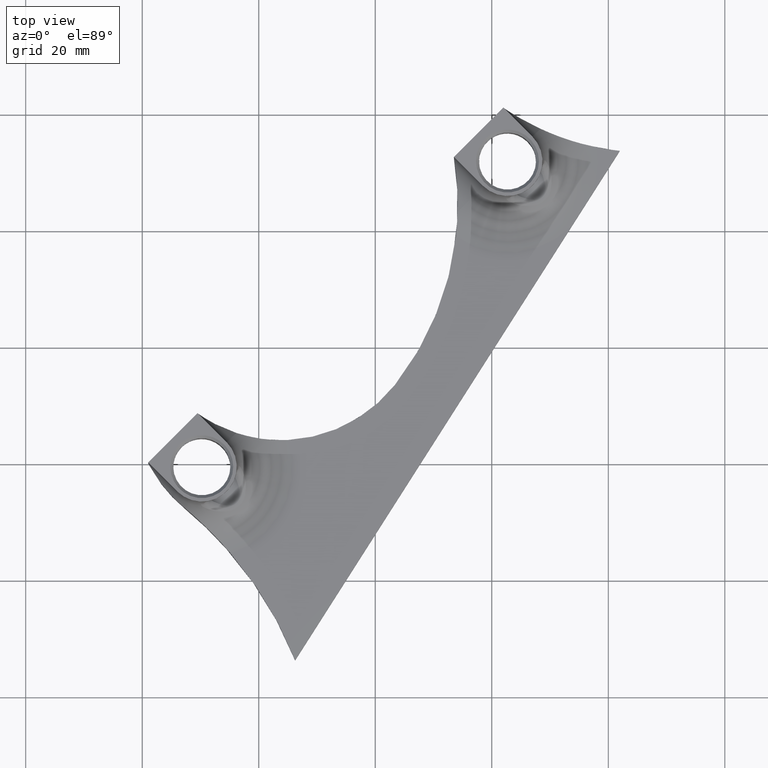
[diagram: clean part render]
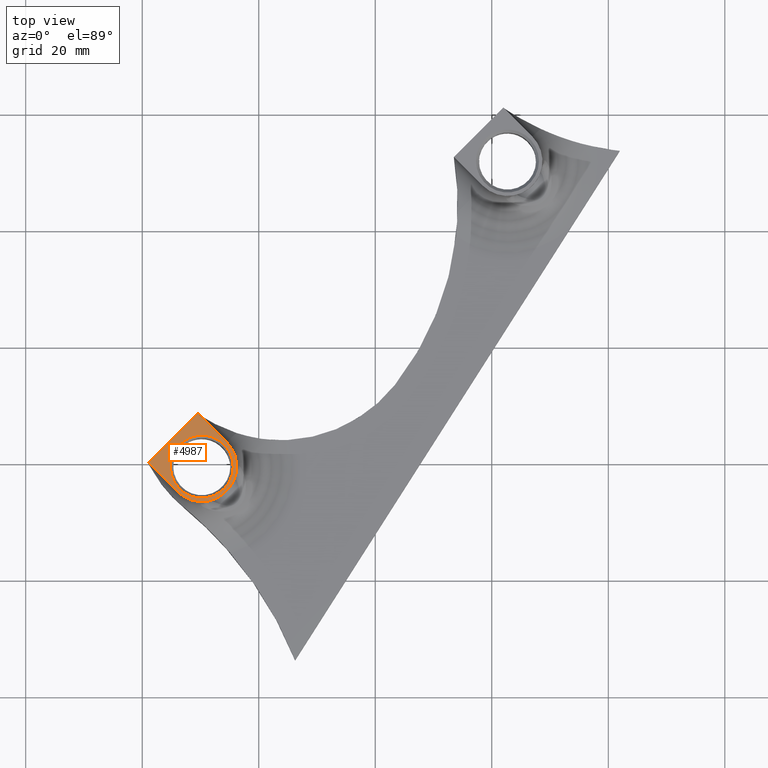
[diagram: same view with one face highlighted and labeled with its STEP entity id]
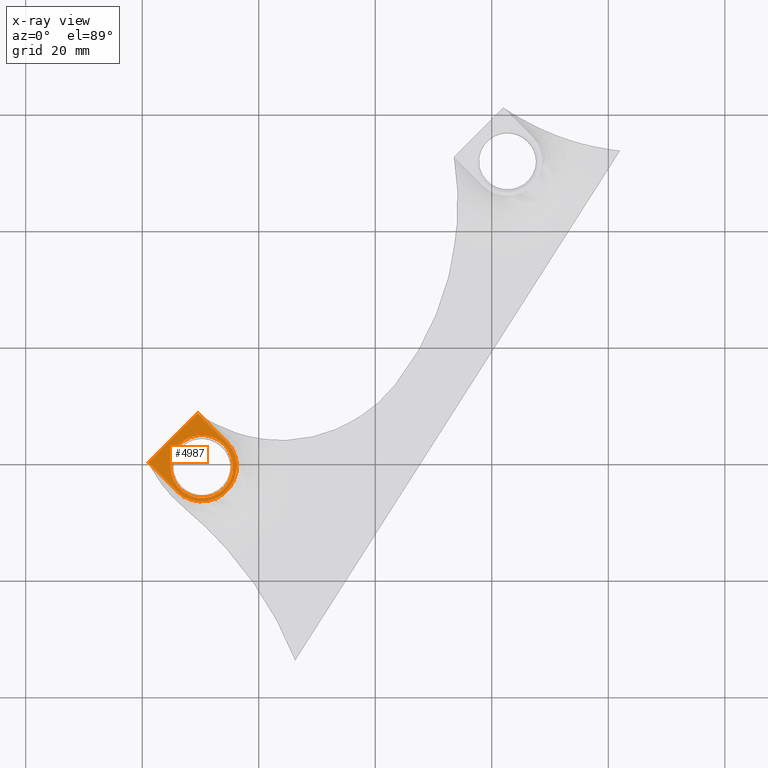
[diagram: x-ray of the same camera — body ghosted, the highlighted face saturated]
A machine part, top view. The second image highlights one B-rep face of the part: STEP entity #4987.
The next image is the same camera in x-ray: the body ghosted, the highlighted face saturated — about 0% of this face is hidden behind the body in this view.
In plain terms, the highlighted planar face has unit normal (0, 0, 1).
Its self-contained STEP definition (entity closure, byte-faithful):
#757 = DIRECTION ( 'NONE',  ( 0.0000000000000000000, 0.0000000000000000000, 1.000000000000000000 ) ) ;
#758 = CARTESIAN_POINT ( 'NONE',  ( 0.0000000000000000000, 0.0000000000000000000, 11.40000000000000000 ) ) ;
#760 = PLANE ( 'NONE',  #2030 ) ;
#762 = DIRECTION ( 'NONE',  ( 1.000000000000000000, 0.0000000000000000000, -0.0000000000000000000 ) ) ;
#826 = CARTESIAN_POINT ( 'NONE',  ( -24.37331683725253100, 39.37998189283575800, 11.40000000000000000 ) ) ;
#2030 = AXIS2_PLACEMENT_3D ( 'NONE', #758, #757, #762 ) ;
#2049 = ORIENTED_EDGE ( 'NONE', *, *, #4540, .T. ) ;
#2061 = ORIENTED_EDGE ( 'NONE', *, *, #4528, .T. ) ;
#2084 = ORIENTED_EDGE ( 'NONE', *, *, #4543, .F. ) ;
#2129 = ORIENTED_EDGE ( 'NONE', *, *, #4542, .F. ) ;
#2131 = ORIENTED_EDGE ( 'NONE', *, *, #4541, .T. ) ;
#2167 = CARTESIAN_POINT ( 'NONE',  ( -34.01595752437175700, 35.13734120571646000, 11.40000000000002200 ) ) ;
#2243 = CARTESIAN_POINT ( 'NONE',  ( -30.48042361843912200, 48.57237004826087900, 11.40000000000002200 ) ) ;
#2257 = CARTESIAN_POINT ( 'NONE',  ( -25.53067615013327100, 43.62262257995502800, 11.40000000000002200 ) ) ;
#2260 = CARTESIAN_POINT ( 'NONE',  ( -38.96570499267765800, 40.08708867402229000, 11.40000000000002200 ) ) ;
#2347 = EDGE_LOOP ( 'NONE', ( #2131, #2129, #2084, #2061 ) ) ;
#2350 = EDGE_LOOP ( 'NONE', ( #2049 ) ) ;
#2384 = VERTEX_POINT ( 'NONE', #826 ) ;
#2408 = FACE_OUTER_BOUND ( 'NONE', #2347, .T. ) ;
#2414 = FACE_BOUND ( 'NONE', #2350, .T. ) ;
#2491 = CIRCLE ( 'NONE', #4468, 5.999999999999967100 ) ;
#2492 = VECTOR ( 'NONE', #3991, 1000.000000000000000 ) ;
#2493 = VECTOR ( 'NONE', #3990, 999.9999999999998900 ) ;
#2494 = LINE ( 'NONE', #4016, #2492 ) ;
#2495 = LINE ( 'NONE', #4015, #2493 ) ;
#2496 = VECTOR ( 'NONE', #3169, 1000.000000000000100 ) ;
#2500 = LINE ( 'NONE', #3168, #2496 ) ;
#2507 = CIRCLE ( 'NONE', #4469, 5.399999999999998600 ) ;
#2973 = VERTEX_POINT ( 'NONE', #2243 ) ;
#2998 = VERTEX_POINT ( 'NONE', #2257 ) ;
#3001 = VERTEX_POINT ( 'NONE', #2260 ) ;
#3025 = VERTEX_POINT ( 'NONE', #2167 ) ;
#3168 = CARTESIAN_POINT ( 'NONE',  ( -25.53067615013327100, 43.62262257995502800, 11.40000000000002200 ) ) ;
#3169 = DIRECTION ( 'NONE',  ( -0.7071067811865474600, 0.7071067811865474600, -0.0000000000000000000 ) ) ;
#3980 = DIRECTION ( 'NONE',  ( -1.000000000000000000, 0.0000000000000000000, 0.0000000000000000000 ) ) ;
#3982 = DIRECTION ( 'NONE',  ( -0.0000000000000000000, -0.0000000000000000000, -1.000000000000000000 ) ) ;
#3983 = CARTESIAN_POINT ( 'NONE',  ( -29.77331683725253000, 39.37998189283575800, 11.40000000000002200 ) ) ;
#3990 = DIRECTION ( 'NONE',  ( -0.7071067811865531200, 0.7071067811865420200, 0.0000000000000000000 ) ) ;
#3991 = DIRECTION ( 'NONE',  ( -0.7071067811865464600, -0.7071067811865486800, 0.0000000000000000000 ) ) ;
#3992 = DIRECTION ( 'NONE',  ( 1.000000000000000000, 0.0000000000000000000, 0.0000000000000000000 ) ) ;
#3994 = DIRECTION ( 'NONE',  ( -0.0000000000000000000, -0.0000000000000000000, -1.000000000000000000 ) ) ;
#3996 = CARTESIAN_POINT ( 'NONE',  ( -29.77331683725253000, 39.37998189283575800, 11.40000000000000000 ) ) ;
#4015 = CARTESIAN_POINT ( 'NONE',  ( -34.01595752437175700, 35.13734120571646000, 11.40000000000002200 ) ) ;
#4016 = CARTESIAN_POINT ( 'NONE',  ( -30.48042361843911200, 48.57237004826087200, 11.39999999999999300 ) ) ;
#4468 = AXIS2_PLACEMENT_3D ( 'NONE', #3983, #3982, #3980 ) ;
#4469 = AXIS2_PLACEMENT_3D ( 'NONE', #3996, #3994, #3992 ) ;
#4528 = EDGE_CURVE ( 'NONE', #2998, #2973, #2500, .T. ) ;
#4540 = EDGE_CURVE ( 'NONE', #2384, #2384, #2507, .T. ) ;
#4541 = EDGE_CURVE ( 'NONE', #2973, #3001, #2494, .T. ) ;
#4542 = EDGE_CURVE ( 'NONE', #3025, #3001, #2495, .T. ) ;
#4543 = EDGE_CURVE ( 'NONE', #2998, #3025, #2491, .T. ) ;
#4987 = ADVANCED_FACE ( 'NONE', ( #2414, #2408 ), #760, .T. ) ;